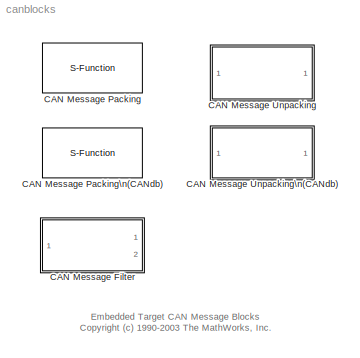
MODEL canblocks
KIND library
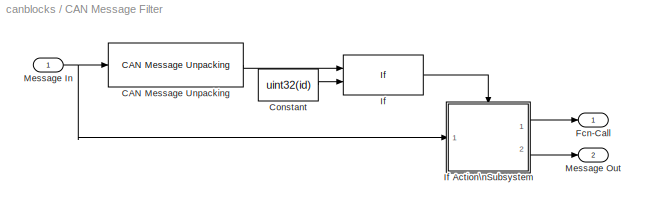
BLOCK [SubSystem] CAN Message Filter
  MaskDescription = Propagates CAN messages with the specified message identifier.\n\nThis block is typically placed in a Function-Call Subsystem connected to a CAN receive block; the CAN receive block is configured to accept messages with a range of CAN identifiers. The function-call output is triggered when the specified message identifier is matched.\n\nThe function-call output may be used to trigger a Function-Ca...<+107ch>
  MaskDisplay = disp('CAN Message \\nFilter')\nport_label('output', 1, 'f()');\nport_label('output', 2, 'Msg');
  MaskEnableString = on
  MaskHelp = helpview([docroot '/toolbox/can_blocks/can_blocks.map'], 'CAN_filt');
  MaskIconFrame = on
  MaskIconOpaque = on
  MaskIconRotate = none
  MaskIconUnits = normalized
  MaskPromptString = CAN message identifier to match:
  MaskStyleString = edit
  MaskToolTipString = on
  MaskTunableValueString = off
  MaskType = CAN Message Filter
  MaskValueString = hex2dec('1FFF')
  MaskVariables = id=@1;
  MaskVisibilityString = on
  MinAlgLoopOccurrences = off
  Ports = [1, 2]
  PropExecContextAcrossSSBoundary = on
  RTWSystemCode = Auto
  TreatAsAtomicUnit = off
BLOCK [Reference] CAN Message Filter/CAN Message Unpacking  REF=canblocks/CAN Message Unpacking/CAN Message Unpacking  (lib defined in mdl_23c95c2b4c34)
  Ports = [1, 1]
  SourceBlock = canblocks/CAN Message Unpacking/CAN Message Unpacking
  SourceType = CAN Message Unpacking
  endian = Little Endian (Intel)
  showData = off
  showID = on
  showLength = off
BLOCK [Constant] CAN Message Filter/Constant
  Value = uint32(id)
BLOCK [Outport] CAN Message Filter/Fcn-Call
  BusOutputAsStruct = off
  IconDisplay = Port number
BLOCK [If] CAN Message Filter/If
  IfExpression = u1 == u2
  NumInputs = 2
  Ports = [2, 1]
  ShowElse = off
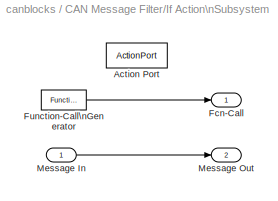
BLOCK [SubSystem] CAN Message Filter/If Action\nSubsystem
  MinAlgLoopOccurrences = off
  Ports = [1, 2, 0, 0, 0, 0, 0, 1]
  PropExecContextAcrossSSBoundary = on
  RTWSystemCode = Auto
  TreatAsAtomicUnit = on
BLOCK [ActionPort] CAN Message Filter/If Action\nSubsystem/Action Port
BLOCK [Outport] CAN Message Filter/If Action\nSubsystem/Fcn-Call
  BusOutputAsStruct = off
  IconDisplay = Port number
BLOCK [Reference] CAN Message Filter/If Action\nSubsystem/Function-Call\nGenerator  REF=simulink/Ports &\nSubsystems/Function-Call\nGenerator
  Ports = [0, 1]
  SourceBlock = simulink/Ports &\nSubsystems/Function-Call\nGenerator
  SourceType = Function-Call Generator
  numberOfIterations = 1
  sample_time = -1
BLOCK [Inport] CAN Message Filter/If Action\nSubsystem/Message In
  IconDisplay = Port number
  LatchInput = off
  Port = 1
BLOCK [Outport] CAN Message Filter/If Action\nSubsystem/Message Out
  BusOutputAsStruct = off
  IconDisplay = Port number
  Port = 2
BLOCK [Inport] CAN Message Filter/Message In
  IconDisplay = Port number
  LatchInput = off
  Port = 1
BLOCK [Outport] CAN Message Filter/Message Out
  BusOutputAsStruct = off
  IconDisplay = Port number
  Port = 2
BLOCK [S-Function] CAN Message Packing
  FunctionName = sfun_can_frame_builder
  MaskCallbackString = ||
  MaskDescription = Constructs a CAN message from the input data signal.
  MaskDisplay = disp('CAN\\nMessage\\nPacking');\n\nport_label('input',1,'Data');\nport_label('output',1,'Msg');
  MaskEnableString = on,on,on
  MaskHelp = helpview([docroot '/toolbox/can_blocks/can_blocks.map'], 'CAN_msg_build');
  MaskIconFrame = on
  MaskIconOpaque = on
  MaskIconRotate = none
  MaskIconUnits = autoscale
  MaskInitialization = % validate CAN message ID\nif ~isempty(id) & id~=(-1) % -1 indicates dynamically set\n  can_msg_id_check(id, message_type);\nend\n\nmessage_type=message_type-1;\nendian = endian - 1;
  MaskPromptString = CAN message identifier:|CAN message type:|Signal byte ordering:
  MaskSelfModifiable = on
  MaskStyleString = edit,popup(Standard (11-bit identifier)|Extended (29-bit identifier)),popup(Little Endian (Intel)|Big Endian (Motorola))
  MaskTabNameString = ,,
  MaskToolTipString = on,on,on
  MaskTunableValueString = off,off,off
  MaskType = CAN Message Packing
  MaskValueString = hex2dec('1F')|Standard (11-bit identifier)|Little Endian (Intel)
  MaskVarAliasString = ,,
  MaskVariables = id=@1;message_type=@2;endian=@3;
  MaskVisibilityString = on,on,on
  Parameters = message_type id endian
  Ports = [1, 1]
BLOCK [S-Function] CAN Message Packing\n(CANdb)
  CopyFcn = can_frame_constructor_mask('copyfcn',gcbh)
  DeleteFcn = can_frame_constructor_mask('safeclosesavedelete',gcbh);
  FunctionName = sfun_can_frame_constructor
  MaskDescription = Constructs a CAN message from the input CANdb data signals.
  MaskDisplay = port_label('input',1,'Signal1 U8');\nport_label('output',1,'Msg')
  MaskHelp = helpview([docroot '/toolbox/can_blocks/can_blocks.map'],'CANdb_msg_construct');
  MaskIconFrame = on
  MaskIconOpaque = on
  MaskIconRotate = none
  MaskIconUnits = autoscale
  MaskInitialization = message = can_frame_constructor_mask('init',gcbh);   \ncan_frame_constructor_mask('updatemaskdisplay',gcbh);
  MaskSelfModifiable = on
  MaskType = CAN Message Packing (CANdb)
  ModelCloseFcn = can_frame_constructor_mask('safeclosesavedelete',gcbh);
  OpenFcn = can_frame_constructor_mask('callback',gcbh);
  Parameters = message
  Ports = [1, 1]
  PreSaveFcn = can_frame_constructor_mask('safeclosesavedelete',gcbh);
  UserData = DataTag0
  UserDataPersistent = on
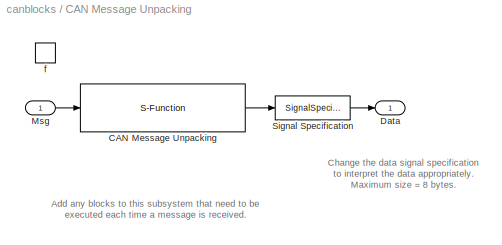
BLOCK [SubSystem] CAN Message Unpacking
  CopyFcn = hNewBlk = find_system(gcbh, 'LookUnderMasks', 'on', 'FollowLinks', 'on', 'SearchDepth', 1, 'BlockType', 'S-Function');refBlkName = get_param(hNewBlk, 'ReferenceBlock');set_param(gcbh, 'LinkStatus', 'none'); set_param(hNewBlk, 'ReferenceBlock', refBlkName); set_param(gcbh,'CopyFcn','');
  MaskDescription = CAN Message Unpacking Function-Call Subsystem Template
  MaskHelp = helpview([docroot '/toolbox/can_blocks/can_blocks.map'], 'template_CAN_msg_unpack');
  MaskIconFrame = on
  MaskIconOpaque = on
  MaskIconRotate = none
  MaskIconUnits = autoscale
  MaskType = CAN Message Unpacking
  MinAlgLoopOccurrences = off
  OpenFcn = open_system(gcb, 'force');
  Ports = [1, 1, 0, 1]
  PropExecContextAcrossSSBoundary = on
  RTWSystemCode = Auto
  TreatAsAtomicUnit = on
BLOCK [S-Function] CAN Message Unpacking/CAN Message Unpacking
  FunctionName = sfun_can_frame_splitter
  MaskCallbackString = |||
  MaskDescription = Extracts the message identifier, length, and data from a CAN message.
  MaskDisplay = disp('CAN\\nMessage\\nUnpacking');\n\nport_label('input',1,'Msg');
  MaskEnableString = on,on,on,on
  MaskHelp = helpview([docroot '/toolbox/can_blocks/can_blocks.map'], 'CAN_msg_unpack');
  MaskIconFrame = on
  MaskIconOpaque = on
  MaskIconRotate = none
  MaskIconUnits = autoscale
  MaskInitialization = endian = endian - 1;
  MaskPromptString = Output data|Output message identifier|Output message length|Signal byte ordering:
  MaskSelfModifiable = on
  MaskStyleString = checkbox,checkbox,checkbox,popup(Little Endian (Intel)|Big Endian (Motorola))
  MaskTabNameString = ,,,
  MaskToolTipString = on,on,on,on
  MaskTunableValueString = off,off,off,off
  MaskType = CAN Message Unpacking
  MaskValueString = on|off|off|Little Endian (Intel)
  MaskVarAliasString = ,,,
  MaskVariables = showData=@1;showID=@2;showLength=@3;endian=@4;
  MaskVisibilityString = on,on,on,on
  Parameters = showData showID showLength endian
  Ports = [1, 1]
BLOCK [Outport] CAN Message Unpacking/Data
  BusOutputAsStruct = off
  IconDisplay = Port number
BLOCK [Inport] CAN Message Unpacking/Msg
  IconDisplay = Port number
  LatchInput = off
  Port = 1
BLOCK [SignalSpecification] CAN Message Unpacking/Signal Specification
  DataType = uint8
  Dimensions = 8
BLOCK [TriggerPort] CAN Message Unpacking/f
  Ports = []
  StatesWhenEnabling = held
  TriggerType = function-call
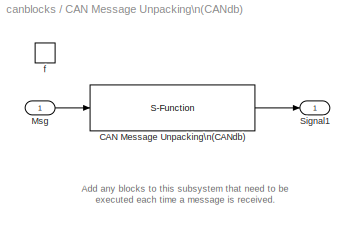
BLOCK [SubSystem] CAN Message Unpacking\n(CANdb)
  CopyFcn = hNewBlk = find_system(gcbh, 'LookUnderMasks', 'on', 'FollowLinks', 'on', 'SearchDepth', 1, 'BlockType', 'S-Function');refBlkName = get_param(hNewBlk, 'ReferenceBlock');set_param(gcbh, 'LinkStatus', 'none'); set_param(hNewBlk, 'ReferenceBlock', refBlkName); set_param(gcbh,'CopyFcn','');
  MaskDescription = CAN Message Unpacking (CANdb) Function-Call Subsystem Template
  MaskHelp = helpview([docroot '/toolbox/can_blocks/can_blocks.map'], 'template_CANdb_msg_unpack');
  MaskIconFrame = on
  MaskIconOpaque = on
  MaskIconRotate = none
  MaskIconUnits = autoscale
  MaskSelfModifiable = on
  MaskType = CAN Message Unpacking (CANdb)
  MinAlgLoopOccurrences = off
  OpenFcn = open_system(gcb, 'force');
  Ports = [1, 1, 0, 1]
  PropExecContextAcrossSSBoundary = on
  RTWSystemCode = Auto
  TreatAsAtomicUnit = on
  UserDataPersistent = on
BLOCK [S-Function] CAN Message Unpacking\n(CANdb)/CAN Message Unpacking\n(CANdb)
  CopyFcn = can_frame_inspector_mask('copyfcn',gcb);
  DeleteFcn = can_frame_inspector_mask('safeclosesavedelete',gcbh);
  FunctionName = sfun_can_frame_inspector
  MaskDisplay = port_label('output',1,' U8 Signal1');\nport_label('input',1,'Msg')
  MaskHelp = helpview([docroot '/toolbox/can_blocks/can_blocks.map'],'CANdb_msg_unpack');
  MaskIconFrame = on
  MaskIconOpaque = on
  MaskIconRotate = none
  MaskIconUnits = autoscale
  MaskInitialization = message = can_frame_inspector_mask('init',gcbh);   \ncan_frame_inspector_mask('updatemaskdisplay',gcbh);
  MaskSelfModifiable = on
  MaskType = CAN Message Unpacking (CANdb)
  ModelCloseFcn = can_frame_inspector_mask('safeclosesavedelete',gcbh);
  OpenFcn = can_frame_inspector_mask('callback',gcb);
  Parameters = message
  Ports = [1, 1]
  PreSaveFcn = can_frame_inspector_mask('safeclosesavedelete',gcbh);
  UserData = DataTag1
  UserDataPersistent = on
BLOCK [Inport] CAN Message Unpacking\n(CANdb)/Msg
  IconDisplay = Port number
  LatchInput = off
  Port = 1
BLOCK [Outport] CAN Message Unpacking\n(CANdb)/Signal1
  BusOutputAsStruct = off
  IconDisplay = Port number
BLOCK [TriggerPort] CAN Message Unpacking\n(CANdb)/f
  Ports = []
  StatesWhenEnabling = held
  TriggerType = function-call
ANNOTATION (root): Embedded Target CAN Message Blocks\nCopyright (c) 1990-2003 The MathWorks, Inc.
ANNOTATION CAN Message Unpacking: Add any blocks to this subsystem that need to be\nexecuted each time a message is received.
ANNOTATION CAN Message Unpacking: Change the data signal specification \nto interpret the data appropriately.\nMaximum size = 8 bytes.
ANNOTATION CAN Message Unpacking\n(CANdb): Add any blocks to this subsystem that need to be\nexecuted each time a message is received.
LINE CAN Message Filter/CAN Message Unpacking:1 -> CAN Message Filter/If:1
LINE CAN Message Filter/Constant:1 -> CAN Message Filter/If:2
LINE CAN Message Filter/If Action\nSubsystem/Function-Call\nGenerator:1 -> CAN Message Filter/If Action\nSubsystem/Fcn-Call:1
LINE CAN Message Filter/If Action\nSubsystem/Message In:1 -> CAN Message Filter/If Action\nSubsystem/Message Out:1
LINE CAN Message Filter/If Action\nSubsystem:1 -> CAN Message Filter/Fcn-Call:1
LINE CAN Message Filter/If Action\nSubsystem:2 -> CAN Message Filter/Message Out:1
LINE CAN Message Filter/If:1 -> CAN Message Filter/If Action\nSubsystem:ifaction
NET CAN Message Filter/Message In:1 -> CAN Message Filter/CAN Message Unpacking:1, CAN Message Filter/If Action\nSubsystem:1
LINE CAN Message Unpacking/CAN Message Unpacking:1 -> CAN Message Unpacking/Signal Specification:1
LINE CAN Message Unpacking/Msg:1 -> CAN Message Unpacking/CAN Message Unpacking:1
LINE CAN Message Unpacking/Signal Specification:1 -> CAN Message Unpacking/Data:1
LINE CAN Message Unpacking\n(CANdb)/CAN Message Unpacking\n(CANdb):1 -> CAN Message Unpacking\n(CANdb)/Signal1:1
LINE CAN Message Unpacking\n(CANdb)/Msg:1 -> CAN Message Unpacking\n(CANdb)/CAN Message Unpacking\n(CANdb):1
note: NET lines group one-source signal fan-out (src -> all destinations, sorted); 1:1 wires keep LINE
